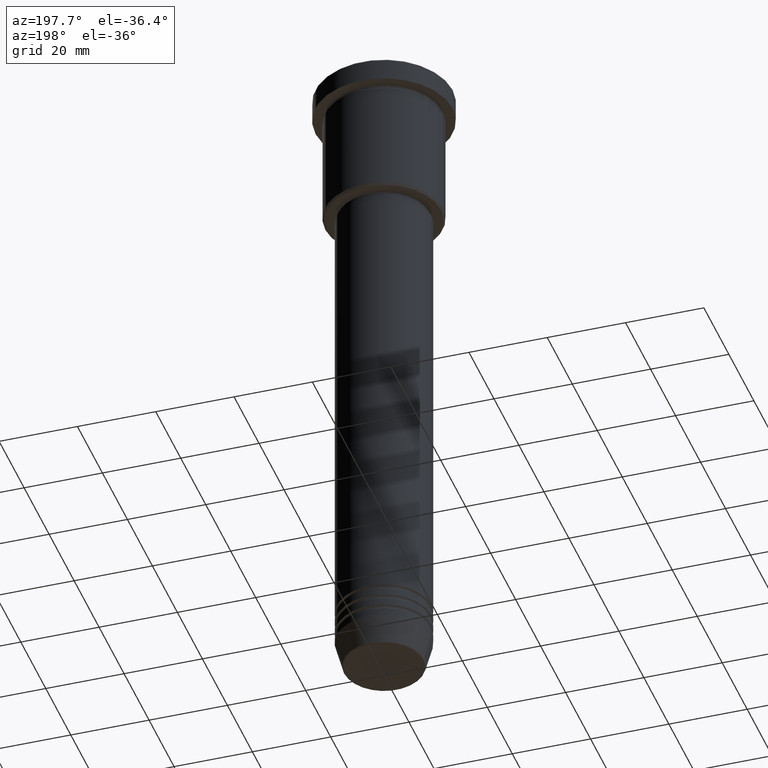
[diagram: clean part render]
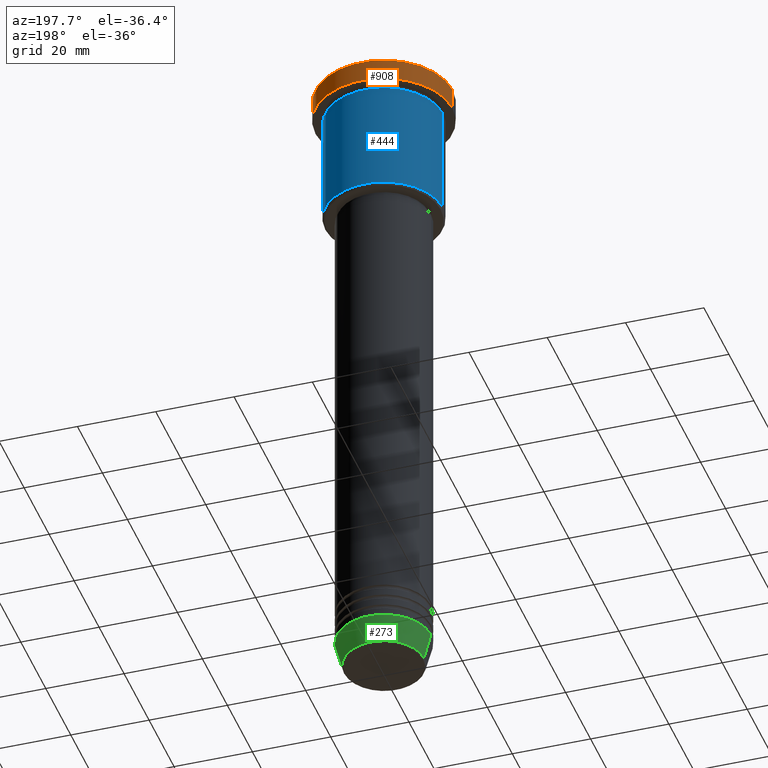
[diagram: same view with three faces highlighted in distinct colors, each labeled with its STEP entity id]
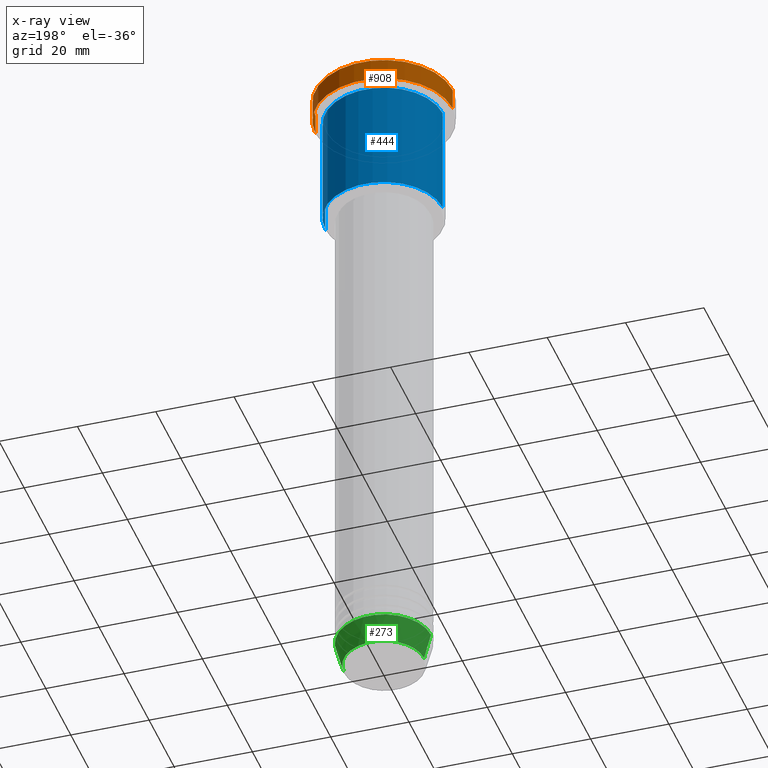
[diagram: x-ray of the same camera — body ghosted, the three highlighted faces saturated]
A machine part, auxiliary view with three faces highlighted in distinct colors.
The next image is the same camera in x-ray (body ghosted, the three faces saturated) — at least one of them is partly hidden behind the body in this view.
Their STEP definitions:

[orange] entity #908 — the highlighted cylindrical surface (partial cylindrical patch) has radius 17.5 mm, axis along (-0, -0, 1).
#5 = CARTESIAN_POINT ( 'NONE',  ( 0.000000000000000000, 0.000000000000000000, -0.4999999999999727995 ) ) ;
#90 = EDGE_CURVE ( 'NONE', #930, #278, #459, .T. ) ;
#101 = EDGE_CURVE ( 'NONE', #1146, #890, #929, .T. ) ;
#145 = CARTESIAN_POINT ( 'NONE',  ( -17.50000000000000000, 2.143131898507868248E-15, -0.4999999999999727995 ) ) ;
#170 = CARTESIAN_POINT ( 'NONE',  ( -17.50000000000000000, 2.143131898507868248E-15, -5.999999999999995559 ) ) ;
#212 = CARTESIAN_POINT ( 'NONE',  ( 17.50000000000000000, 0.000000000000000000, -5.999999999999995559 ) ) ;
#256 = ORIENTED_EDGE ( 'NONE', *, *, #90, .T. ) ;
#278 = VERTEX_POINT ( 'NONE', #145 ) ;
#284 = AXIS2_PLACEMENT_3D ( 'NONE', #353, #636, #911 ) ;
#353 = CARTESIAN_POINT ( 'NONE',  ( 0.000000000000000000, 0.000000000000000000, 0.000000000000000000 ) ) ;
#360 = DIRECTION ( 'NONE',  ( 1.000000000000000000, 0.000000000000000000, 0.000000000000000000 ) ) ;
#362 = DIRECTION ( 'NONE',  ( -0.000000000000000000, -0.000000000000000000, 1.000000000000000000 ) ) ;
#394 = CIRCLE ( 'NONE', #472, 17.50000000000000000 ) ;
#441 = EDGE_CURVE ( 'NONE', #1146, #930, #394, .T. ) ;
#459 = LINE ( 'NONE', #657, #936 ) ;
#472 = AXIS2_PLACEMENT_3D ( 'NONE', #928, #362, #830 ) ;
#480 = CARTESIAN_POINT ( 'NONE',  ( 17.50000000000000000, 0.000000000000000000, 0.000000000000000000 ) ) ;
#502 = EDGE_LOOP ( 'NONE', ( #986, #256, #914, #774 ) ) ;
#609 = AXIS2_PLACEMENT_3D ( 'NONE', #5, #652, #360 ) ;
#636 = DIRECTION ( 'NONE',  ( -0.000000000000000000, -0.000000000000000000, 1.000000000000000000 ) ) ;
#652 = DIRECTION ( 'NONE',  ( 0.000000000000000000, 0.000000000000000000, -1.000000000000000000 ) ) ;
#657 = CARTESIAN_POINT ( 'NONE',  ( -17.50000000000000000, 2.143131898507868248E-15, 0.000000000000000000 ) ) ;
#718 = FACE_OUTER_BOUND ( 'NONE', #502, .T. ) ;
#774 = ORIENTED_EDGE ( 'NONE', *, *, #101, .F. ) ;
#807 = CARTESIAN_POINT ( 'NONE',  ( 17.50000000000000000, 0.000000000000000000, -0.4999999999999727995 ) ) ;
#825 = DIRECTION ( 'NONE',  ( -0.000000000000000000, -0.000000000000000000, 1.000000000000000000 ) ) ;
#830 = DIRECTION ( 'NONE',  ( 1.000000000000000000, 0.000000000000000000, 0.000000000000000000 ) ) ;
#890 = VERTEX_POINT ( 'NONE', #807 ) ;
#908 = ADVANCED_FACE ( 'NONE', ( #718 ), #1003, .T. ) ;
#911 = DIRECTION ( 'NONE',  ( 1.000000000000000000, 0.000000000000000000, 0.000000000000000000 ) ) ;
#914 = ORIENTED_EDGE ( 'NONE', *, *, #961, .T. ) ;
#917 = VECTOR ( 'NONE', #825, 1000.000000000000000 ) ;
#928 = CARTESIAN_POINT ( 'NONE',  ( 0.000000000000000000, 0.000000000000000000, -5.999999999999995559 ) ) ;
#929 = LINE ( 'NONE', #480, #917 ) ;
#930 = VERTEX_POINT ( 'NONE', #170 ) ;
#936 = VECTOR ( 'NONE', #1025, 1000.000000000000000 ) ;
#961 = EDGE_CURVE ( 'NONE', #278, #890, #1040, .T. ) ;
#986 = ORIENTED_EDGE ( 'NONE', *, *, #441, .T. ) ;
#1003 = CYLINDRICAL_SURFACE ( 'NONE', #284, 17.50000000000000000 ) ;
#1025 = DIRECTION ( 'NONE',  ( -0.000000000000000000, -0.000000000000000000, 1.000000000000000000 ) ) ;
#1040 = CIRCLE ( 'NONE', #609, 17.50000000000000000 ) ;
#1146 = VERTEX_POINT ( 'NONE', #212 ) ;

[blue] entity #444 — the highlighted cylindrical surface (partial cylindrical patch) has radius 15 mm, axis along (-0, -0, 1).
#2 = DIRECTION ( 'NONE',  ( 1.000000000000000000, 0.000000000000000000, 0.000000000000000000 ) ) ;
#7 = DIRECTION ( 'NONE',  ( -0.000000000000000000, -0.000000000000000000, 1.000000000000000000 ) ) ;
#23 = CYLINDRICAL_SURFACE ( 'NONE', #688, 15.00000000000000000 ) ;
#59 = AXIS2_PLACEMENT_3D ( 'NONE', #221, #126, #389 ) ;
#105 = CARTESIAN_POINT ( 'NONE',  ( 0.000000000000000000, 0.000000000000000000, 0.000000000000000000 ) ) ;
#126 = DIRECTION ( 'NONE',  ( -0.000000000000000000, -0.000000000000000000, 1.000000000000000000 ) ) ;
#221 = CARTESIAN_POINT ( 'NONE',  ( 0.000000000000000000, 0.000000000000000000, -35.49999999999996447 ) ) ;
#262 = VECTOR ( 'NONE', #783, 1000.000000000000000 ) ;
#275 = EDGE_CURVE ( 'NONE', #580, #1107, #1088, .T. ) ;
#369 = ORIENTED_EDGE ( 'NONE', *, *, #811, .T. ) ;
#375 = VECTOR ( 'NONE', #420, 1000.000000000000000 ) ;
#389 = DIRECTION ( 'NONE',  ( -1.000000000000000000, 0.000000000000000000, 0.000000000000000000 ) ) ;
#411 = DIRECTION ( 'NONE',  ( 1.000000000000000000, 0.000000000000000000, 0.000000000000000000 ) ) ;
#420 = DIRECTION ( 'NONE',  ( -0.000000000000000000, -0.000000000000000000, 1.000000000000000000 ) ) ;
#434 = CARTESIAN_POINT ( 'NONE',  ( -15.00000000000000000, 1.836970198721029589E-15, 0.000000000000000000 ) ) ;
#444 = ADVANCED_FACE ( 'NONE', ( #447 ), #23, .T. ) ;
#447 = FACE_OUTER_BOUND ( 'NONE', #658, .T. ) ;
#568 = ORIENTED_EDGE ( 'NONE', *, *, #630, .F. ) ;
#580 = VERTEX_POINT ( 'NONE', #913 ) ;
#630 = EDGE_CURVE ( 'NONE', #1107, #1033, #1171, .T. ) ;
#658 = EDGE_LOOP ( 'NONE', ( #857, #369, #568, #695 ) ) ;
#688 = AXIS2_PLACEMENT_3D ( 'NONE', #105, #7, #2 ) ;
#695 = ORIENTED_EDGE ( 'NONE', *, *, #275, .F. ) ;
#776 = CARTESIAN_POINT ( 'NONE',  ( 0.000000000000000000, 0.000000000000000000, -6.999999999999995559 ) ) ;
#783 = DIRECTION ( 'NONE',  ( -0.000000000000000000, -0.000000000000000000, 1.000000000000000000 ) ) ;
#790 = CARTESIAN_POINT ( 'NONE',  ( 15.00000000000000000, 0.000000000000000000, 0.000000000000000000 ) ) ;
#811 = EDGE_CURVE ( 'NONE', #1067, #1033, #880, .T. ) ;
#857 = ORIENTED_EDGE ( 'NONE', *, *, #1085, .T. ) ;
#880 = LINE ( 'NONE', #434, #262 ) ;
#913 = CARTESIAN_POINT ( 'NONE',  ( 15.00000000000000000, 0.000000000000000000, -35.49999999999996447 ) ) ;
#931 = CARTESIAN_POINT ( 'NONE',  ( -15.00000000000000000, 1.836970198721029589E-15, -35.49999999999996447 ) ) ;
#933 = DIRECTION ( 'NONE',  ( -0.000000000000000000, -0.000000000000000000, 1.000000000000000000 ) ) ;
#962 = CARTESIAN_POINT ( 'NONE',  ( -15.00000000000000000, 1.836970198721029589E-15, -6.999999999999995559 ) ) ;
#1033 = VERTEX_POINT ( 'NONE', #962 ) ;
#1045 = CARTESIAN_POINT ( 'NONE',  ( 15.00000000000000000, 0.000000000000000000, -6.999999999999995559 ) ) ;
#1067 = VERTEX_POINT ( 'NONE', #931 ) ;
#1076 = AXIS2_PLACEMENT_3D ( 'NONE', #776, #933, #411 ) ;
#1085 = EDGE_CURVE ( 'NONE', #580, #1067, #1109, .T. ) ;
#1088 = LINE ( 'NONE', #790, #375 ) ;
#1107 = VERTEX_POINT ( 'NONE', #1045 ) ;
#1109 = CIRCLE ( 'NONE', #59, 15.00000000000000000 ) ;
#1171 = CIRCLE ( 'NONE', #1076, 15.00000000000000000 ) ;

[green] entity #273 — the highlighted conical surface has half-angle 15 deg.
#58 = CARTESIAN_POINT ( 'NONE',  ( -12.00000000000000000, 1.469576158976823947E-15, -164.0000000000000000 ) ) ;
#66 = CARTESIAN_POINT ( 'NONE',  ( 0.000000000000000000, 0.000000000000000000, -164.0000000000000000 ) ) ;
#67 = VERTEX_POINT ( 'NONE', #558 ) ;
#103 = CARTESIAN_POINT ( 'NONE',  ( 12.00000000000000000, 0.000000000000000000, -164.0000000000000000 ) ) ;
#108 = ORIENTED_EDGE ( 'NONE', *, *, #977, .F. ) ;
#118 = DIRECTION ( 'NONE',  ( -0.2588190451025213501, 3.169619151431772337E-17, 0.9659258262890680902 ) ) ;
#196 = DIRECTION ( 'NONE',  ( -0.000000000000000000, -0.000000000000000000, 1.000000000000000000 ) ) ;
#228 = EDGE_CURVE ( 'NONE', #1039, #310, #398, .T. ) ;
#273 = ADVANCED_FACE ( 'NONE', ( #329 ), #897, .T. ) ;
#301 = ORIENTED_EDGE ( 'NONE', *, *, #228, .T. ) ;
#310 = VERTEX_POINT ( 'NONE', #58 ) ;
#329 = FACE_OUTER_BOUND ( 'NONE', #579, .T. ) ;
#376 = CIRCLE ( 'NONE', #975, 12.00000000000000000 ) ;
#379 = DIRECTION ( 'NONE',  ( 1.000000000000000000, 0.000000000000000000, 0.000000000000000000 ) ) ;
#385 = EDGE_CURVE ( 'NONE', #67, #310, #376, .T. ) ;
#398 = LINE ( 'NONE', #1054, #625 ) ;
#435 = CARTESIAN_POINT ( 'NONE',  ( 0.000000000000000000, 0.000000000000000000, -164.0000000000000000 ) ) ;
#448 = VERTEX_POINT ( 'NONE', #1100 ) ;
#492 = ORIENTED_EDGE ( 'NONE', *, *, #526, .T. ) ;
#526 = EDGE_CURVE ( 'NONE', #448, #1039, #607, .T. ) ;
#558 = CARTESIAN_POINT ( 'NONE',  ( 12.00000000000000000, 0.000000000000000000, -164.0000000000000000 ) ) ;
#579 = EDGE_LOOP ( 'NONE', ( #492, #301, #729, #108 ) ) ;
#607 = CIRCLE ( 'NONE', #1017, 10.22365507213719660 ) ;
#625 = VECTOR ( 'NONE', #118, 1000.000000000000000 ) ;
#654 = CARTESIAN_POINT ( 'NONE',  ( 0.000000000000000000, 0.000000000000000000, -170.6294095225512706 ) ) ;
#715 = DIRECTION ( 'NONE',  ( -0.000000000000000000, -0.000000000000000000, 1.000000000000000000 ) ) ;
#726 = LINE ( 'NONE', #103, #764 ) ;
#729 = ORIENTED_EDGE ( 'NONE', *, *, #385, .F. ) ;
#764 = VECTOR ( 'NONE', #1098, 1000.000000000000000 ) ;
#770 = CARTESIAN_POINT ( 'NONE',  ( -10.22365507213719837, 1.360806402472383336E-15, -170.6294095225512706 ) ) ;
#888 = DIRECTION ( 'NONE',  ( 1.000000000000000000, 0.000000000000000000, 0.000000000000000000 ) ) ;
#897 = CONICAL_SURFACE ( 'NONE', #1131, 12.00000000000000000, 0.2617993877991500740 ) ;
#971 = DIRECTION ( 'NONE',  ( 1.000000000000000000, 0.000000000000000000, 0.000000000000000000 ) ) ;
#975 = AXIS2_PLACEMENT_3D ( 'NONE', #66, #1177, #888 ) ;
#977 = EDGE_CURVE ( 'NONE', #448, #67, #726, .T. ) ;
#1017 = AXIS2_PLACEMENT_3D ( 'NONE', #654, #196, #379 ) ;
#1039 = VERTEX_POINT ( 'NONE', #770 ) ;
#1054 = CARTESIAN_POINT ( 'NONE',  ( -12.00000000000000000, 1.469576158976823947E-15, -164.0000000000000000 ) ) ;
#1098 = DIRECTION ( 'NONE',  ( 0.2588190451025213501, 0.000000000000000000, 0.9659258262890680902 ) ) ;
#1100 = CARTESIAN_POINT ( 'NONE',  ( 10.22365507213719660, 0.000000000000000000, -170.6294095225512706 ) ) ;
#1131 = AXIS2_PLACEMENT_3D ( 'NONE', #435, #715, #971 ) ;
#1177 = DIRECTION ( 'NONE',  ( -0.000000000000000000, -0.000000000000000000, 1.000000000000000000 ) ) ;